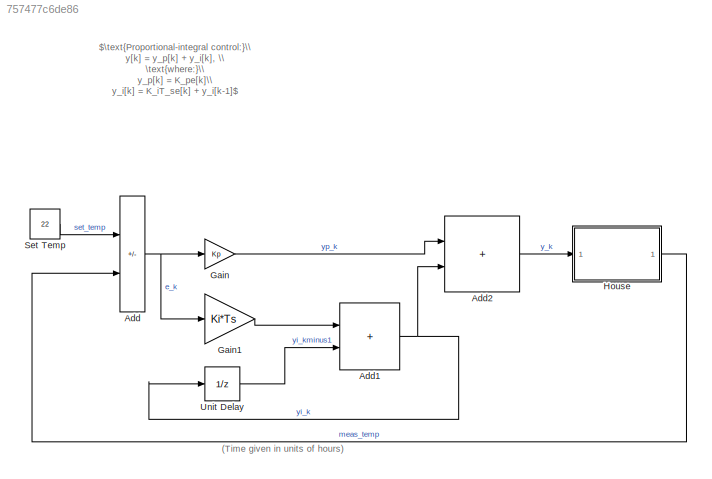
MODEL slx_757477c6de86
KIND model
CONFIG AbsTol = auto
CONFIG EnableMultiTasking = off
CONFIG FixedStep = auto
CONFIG MaxStep = auto
CONFIG MinStep = auto
CONFIG RelTol = 1e-3
CONFIG SampleTimeConstraint = Unconstrained
CONFIG SolverName = VariableStepAuto
CONFIG StartFcn = learning.simulink.modelCallbacks.startFunction(gcs)
CONFIG StartTime = 0.0
CONFIG StopFcn = learning.simulink.modelCallbacks.stopFunction(gcs);
CONFIG StopTime = 10.0
WORKSPACE source: mxarray member
WORKSPACE courseObject: object (value not decoded)
WORKSPACE t_ans = [0 3.44882310802e-07 2.06929386481e-06 1.06913516349e-05 5.38016404852e-05 0.000269353084737 0.00134711030599 0.00673589641228 0.0246147261548 0.0493860964287 0.083811385317 0.129621810728 ... (144 elements, 144x1)]
WORKSPACE y_ans5 = [0.165 0.164998492878 0.164990957572 0.164953288613 0.164765132939 0.163829066348 0.159264513798 0.139100169013 0.2995349504 0.280074861211 0.411854808282 0.399795884174 ... (60 elements, 60x1)]
WORKSPACE y_ans6 = [0 0.000200949591965 0.00120565787659 0.00622820760954 0.0313161877119 0.156139821616 0.765211136192 3.47456129023 9.66726186092 14.4061638265 17.7295717319 19.7232109637 ... (66 elements, 66x1)]
WORKSPACE y_ans7 = [0 0.000200949591965 0.00120565787659 0.00622820760954 0.0313161877119 0.156139821616 0.765211136192 3.47456129023 9.66726186092 14.4061638265 17.7295717319 19.7232109637 ... (144 elements, 144x1)]
BLOCK [Sum] Add
  IconShape = rectangular
  Inputs = +-
BLOCK [Sum] Add1
  IconShape = rectangular
BLOCK [Sum] Add2
  IconShape = rectangular
BLOCK [Gain] Gain
  Gain = Kp
BLOCK [Gain] Gain1
  Gain = Ki*Ts
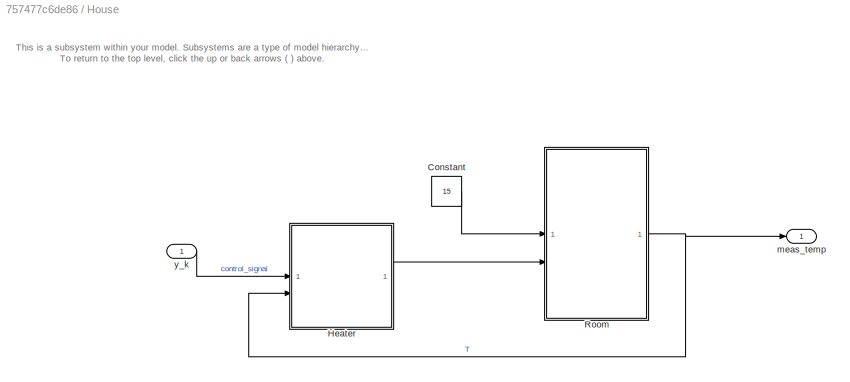
BLOCK [SubSystem] House
BLOCK [Constant] House/Constant
  Value = 15
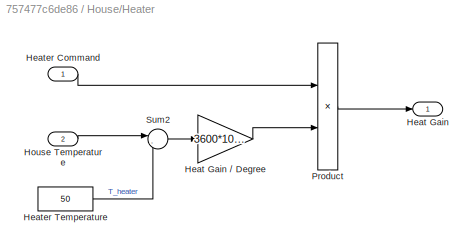
BLOCK [SubSystem] House/Heater
BLOCK [Outport] House/Heater/Heat Gain
  Unit = joule/hour
  VectorParamsAs1DForOutWhenUnconnected = off
BLOCK [Gain] House/Heater/Heat Gain // Degree
  Gain = 3600*1005.4
BLOCK [Inport] House/Heater/Heater Command
BLOCK [Constant] House/Heater/Heater Temperature
  Value = 50
BLOCK [Inport] House/Heater/House Temperature
  Port = 2
BLOCK [Product] House/Heater/Product
  RndMeth = Zero
BLOCK [Sum] House/Heater/Sum2
  Inputs = |-+
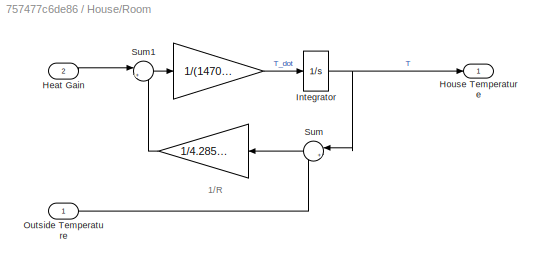
BLOCK [SubSystem] House/Room
BLOCK [Gain] House/Room/ 
  Gain = 1/4.285e-7
  OutDataTypeStr = Inherit: Same as input
  ParamDataTypeStr = Inherit: Same as input
  SaturateOnIntegerOverflow = on
BLOCK [Gain] House/Room/  
  Gain = 1/(1470*1005.4)
  OutDataTypeStr = Inherit: Same as input
  ParamDataTypeStr = Inherit: Same as input
  SaturateOnIntegerOverflow = on
BLOCK [Inport] House/Room/Heat Gain 
  Port = 2
  Unit = joule/h
BLOCK [Outport] House/Room/House Temperature
  Unit = °C
  VectorParamsAs1DForOutWhenUnconnected = off
BLOCK [Integrator] House/Room/Integrator
BLOCK [Inport] House/Room/Outside Temperature
  Unit = °C
BLOCK [Sum] House/Room/Sum
  Inputs = |+-
BLOCK [Sum] House/Room/Sum1
  InputSameDT = on
  Inputs = |+-
  OutDataTypeStr = Inherit: Same as first input
  SaturateOnIntegerOverflow = on
BLOCK [Outport] House/meas_temp
  VectorParamsAs1DForOutWhenUnconnected = off
BLOCK [Inport] House/y_k
BLOCK [Constant] Set Temp
  Value = 22
BLOCK [UnitDelay] Unit Delay
  HasFrameUpgradeWarning = on
  SampleTime = Ts
ANNOTATION (root): (Time given in units of hours)
ANNOTATION (root): $\text{Proportional-integral control:}\\ y[k] = y_p[k] + y_i[k], \\ \text{where:}\\ y_p[k] = K_pe[k]\\ y_i[k] = K_iT_se[k] + y_i[k-1]$
ANNOTATION House: This is a subsystem within your model. Subsystems are a type of model hierarchy or organization. To return to the top level, click the up or back arrows ( ) above.
ANNOTATION House/Room: 1/R
NET Add1:1 -> Add2:2, Unit Delay:1
LINE Add2:1 -> House:1
NET Add:1 -> Gain1:1, Gain:1
LINE Gain1:1 -> Add1:1
LINE Gain:1 -> Add2:1
LINE House/Constant:1 -> House/Room:1
LINE House/Heater/Heat Gain // Degree:1 -> House/Heater/Product:2
LINE House/Heater/Heater Command:1 -> House/Heater/Product:1
LINE House/Heater/Heater Temperature:1 -> House/Heater/Sum2:2
LINE House/Heater/House Temperature:1 -> House/Heater/Sum2:1
LINE House/Heater/Product:1 -> House/Heater/Heat Gain:1
LINE House/Heater/Sum2:1 -> House/Heater/Heat Gain // Degree:1
LINE House/Heater:1 -> House/Room:2
LINE House/Room/  :1 -> House/Room/Integrator:1
LINE House/Room/ :1 -> House/Room/Sum1:2
LINE House/Room/Heat Gain :1 -> House/Room/Sum1:1
NET House/Room/Integrator:1 -> House/Room/House Temperature:1, House/Room/Sum:1
LINE House/Room/Outside Temperature:1 -> House/Room/Sum:2
LINE House/Room/Sum1:1 -> House/Room/  :1
LINE House/Room/Sum:1 -> House/Room/ :1
NET House/Room:1 -> House/Heater:2, House/meas_temp:1
LINE House/y_k:1 -> House/Heater:1
LINE House:1 -> Add:2
LINE Set Temp:1 -> Add:1
LINE Unit Delay:1 -> Add1:2
note: NET lines group one-source signal fan-out (src -> all destinations, sorted); 1:1 wires keep LINE
